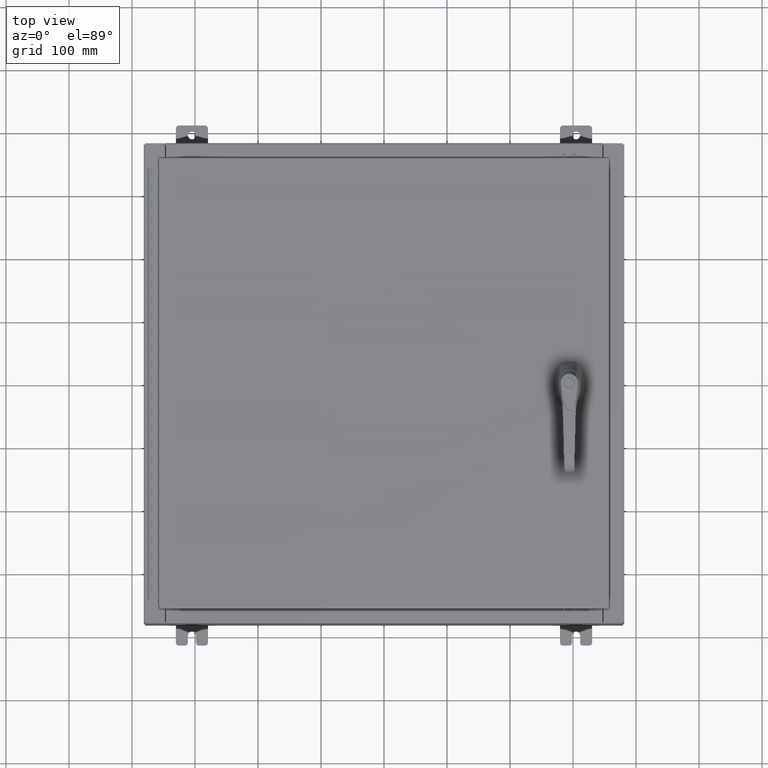
[diagram: clean part render]
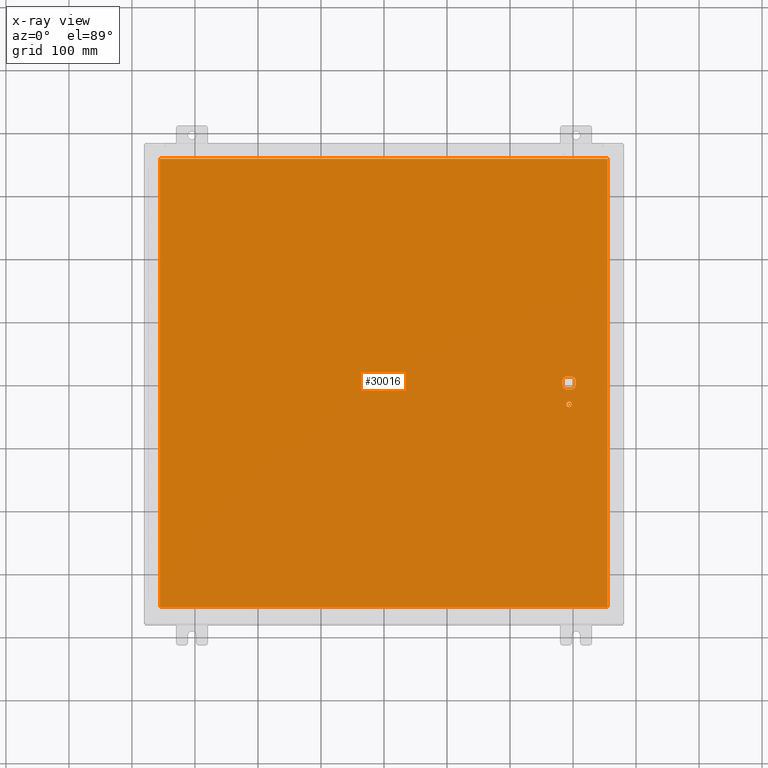
[diagram: x-ray — body ghosted, one internal face saturated and labeled with its STEP entity id]
A machine part, top view, then the same camera in x-ray: the body is ghosted and one INTERNAL B-rep face — a face not visible from any outside direction — is saturated and labeled: STEP entity #30016.
In plain terms, the highlighted planar face has unit normal (0, 0, -1).
Its self-contained STEP definition (entity closure, byte-faithful):
#462 = CARTESIAN_POINT ( 'NONE',  ( 0.0000000000000000000, -0.4029999999999252000, -0.07470000000000003000 ) ) ;
#2960 = CIRCLE ( 'NONE', #76169, 0.1715000000000011500 ) ;
#5609 = EDGE_CURVE ( 'NONE', #63403, #84814, #28062, .T. ) ;
#6179 = FACE_OUTER_BOUND ( 'NONE', #62914, .T. ) ;
#6189 = ORIENTED_EDGE ( 'NONE', *, *, #82109, .F. ) ;
#6608 = EDGE_CURVE ( 'NONE', #28582, #18325, #113651, .T. ) ;
#7896 = CARTESIAN_POINT ( 'NONE',  ( 0.0000000000000000000, 0.4029999999999252000, -0.07470000000000003000 ) ) ;
#11166 = LINE ( 'NONE', #114483, #105381 ) ;
#11425 = ORIENTED_EDGE ( 'NONE', *, *, #75867, .T. ) ;
#12261 = CARTESIAN_POINT ( 'NONE',  ( 11.98099999999992900, -0.2002273707563067300, -0.07470000000000003000 ) ) ;
#13585 = VERTEX_POINT ( 'NONE', #53347 ) ;
#14094 = CIRCLE ( 'NONE', #71144, 0.4499999999999168000 ) ;
#14347 = LINE ( 'NONE', #462, #81550 ) ;
#14495 = PLANE ( 'NONE',  #21313 ) ;
#16480 = VERTEX_POINT ( 'NONE', #85905 ) ;
#17195 = ORIENTED_EDGE ( 'NONE', *, *, #18259, .T. ) ;
#18259 = EDGE_CURVE ( 'NONE', #111970, #37925, #14094, .T. ) ;
#18325 = VERTEX_POINT ( 'NONE', #103725 ) ;
#18920 = EDGE_CURVE ( 'NONE', #81813, #66931, #71163, .T. ) ;
#19060 = CARTESIAN_POINT ( 'NONE',  ( 11.37777262924369200, 0.4029999999999252000, -0.07470000000000003000 ) ) ;
#21177 = ORIENTED_EDGE ( 'NONE', *, *, #114319, .T. ) ;
#21313 = AXIS2_PLACEMENT_3D ( 'NONE', #42019, #105856, #51186 ) ;
#21895 = ORIENTED_EDGE ( 'NONE', *, *, #53624, .T. ) ;
#25097 = DIRECTION ( 'NONE',  ( -0.0000000000000000000, -0.0000000000000000000, 1.000000000000000000 ) ) ;
#25646 = LINE ( 'NONE', #36164, #49925 ) ;
#27431 = ORIENTED_EDGE ( 'NONE', *, *, #102684, .F. ) ;
#28062 = CIRCLE ( 'NONE', #32791, 0.4499999999999168000 ) ;
#28219 = ORIENTED_EDGE ( 'NONE', *, *, #70433, .T. ) ;
#28260 = AXIS2_PLACEMENT_3D ( 'NONE', #107661, #52976, #116899 ) ;
#28436 = CARTESIAN_POINT ( 'NONE',  ( 11.37777262924369200, -0.4029999999999250300, -0.07470000000000003000 ) ) ;
#28582 = VERTEX_POINT ( 'NONE', #46471 ) ;
#29080 = AXIS2_PLACEMENT_3D ( 'NONE', #92074, #37431, #101270 ) ;
#30016 = ADVANCED_FACE ( 'NONE', ( #76166, #6179, #54704 ), #14495, .T. ) ;
#30328 = CARTESIAN_POINT ( 'NONE',  ( 11.57800000000000100, 0.0000000000000000000, -0.07470000000000003000 ) ) ;
#32181 = DIRECTION ( 'NONE',  ( -1.000000000000000000, -0.0000000000000000000, -0.0000000000000000000 ) ) ;
#32791 = AXIS2_PLACEMENT_3D ( 'NONE', #102702, #48009, #111899 ) ;
#35542 = CARTESIAN_POINT ( 'NONE',  ( 13.99030000000000100, -14.00630000000000300, -0.07470000000000000300 ) ) ;
#36164 = CARTESIAN_POINT ( 'NONE',  ( 11.98099999999992900, 6.538620706741755000E-014, -0.07470000000000003000 ) ) ;
#37150 = DIRECTION ( 'NONE',  ( 1.000000000000000000, 0.0000000000000000000, 0.0000000000000000000 ) ) ;
#37431 = DIRECTION ( 'NONE',  ( -0.0000000000000000000, -0.0000000000000000000, 1.000000000000000000 ) ) ;
#37691 = LINE ( 'NONE', #101814, #86256 ) ;
#37925 = VERTEX_POINT ( 'NONE', #12261 ) ;
#39526 = DIRECTION ( 'NONE',  ( -1.000000000000000000, -1.776356839400246700E-015, 0.0000000000000000000 ) ) ;
#40044 = ORIENTED_EDGE ( 'NONE', *, *, #116385, .F. ) ;
#40237 = LINE ( 'NONE', #96044, #88802 ) ;
#42019 = CARTESIAN_POINT ( 'NONE',  ( 0.0000000000000000000, 0.0000000000000000000, -0.07470000000000000300 ) ) ;
#42417 = CARTESIAN_POINT ( 'NONE',  ( -13.99029999999999800, 14.00629999999999400, -0.07470000000000000300 ) ) ;
#42448 = EDGE_LOOP ( 'NONE', ( #88512, #60122 ) ) ;
#43275 = EDGE_CURVE ( 'NONE', #96323, #111970, #14347, .T. ) ;
#46471 = CARTESIAN_POINT ( 'NONE',  ( 11.40650000000000100, -1.338000000000000100, -0.07470000000000003000 ) ) ;
#46629 = VERTEX_POINT ( 'NONE', #92173 ) ;
#46849 = VECTOR ( 'NONE', #109557, 39.37007874015748100 ) ;
#47136 = DIRECTION ( 'NONE',  ( 1.000000000000000000, -0.0000000000000000000, -0.0000000000000000000 ) ) ;
#48009 = DIRECTION ( 'NONE',  ( -0.0000000000000000000, -0.0000000000000000000, 1.000000000000000000 ) ) ;
#49925 = VECTOR ( 'NONE', #118416, 39.37007874015748100 ) ;
#51186 = DIRECTION ( 'NONE',  ( -1.000000000000000000, 0.0000000000000000000, -0.0000000000000000000 ) ) ;
#51446 = DIRECTION ( 'NONE',  ( -0.0000000000000000000, -0.0000000000000000000, 1.000000000000000000 ) ) ;
#52976 = DIRECTION ( 'NONE',  ( -0.0000000000000000000, -0.0000000000000000000, 1.000000000000000000 ) ) ;
#53347 = CARTESIAN_POINT ( 'NONE',  ( 11.77822737075631200, 0.4029999999999250300, -0.07470000000000003000 ) ) ;
#53624 = EDGE_CURVE ( 'NONE', #16480, #13585, #108218, .T. ) ;
#53920 = CARTESIAN_POINT ( 'NONE',  ( -13.99029999999999800, -14.00630000000000100, -0.07470000000000000300 ) ) ;
#54704 = FACE_BOUND ( 'NONE', #115995, .T. ) ;
#55701 = VECTOR ( 'NONE', #62889, 39.37007874015748100 ) ;
#60122 = ORIENTED_EDGE ( 'NONE', *, *, #6608, .T. ) ;
#62889 = DIRECTION ( 'NONE',  ( 0.0000000000000000000, 1.000000000000000000, 0.0000000000000000000 ) ) ;
#62914 = EDGE_LOOP ( 'NONE', ( #27431, #6189, #87693, #40044 ) ) ;
#63403 = VERTEX_POINT ( 'NONE', #19060 ) ;
#63632 = CARTESIAN_POINT ( 'NONE',  ( -13.99029999999999800, 14.00629999999999600, -0.07470000000000019700 ) ) ;
#66931 = VERTEX_POINT ( 'NONE', #53920 ) ;
#68250 = CARTESIAN_POINT ( 'NONE',  ( 11.77822737075631200, -0.4029999999999252000, -0.07470000000000003000 ) ) ;
#68309 = EDGE_CURVE ( 'NONE', #18325, #28582, #2960, .T. ) ;
#70433 = EDGE_CURVE ( 'NONE', #84814, #46629, #11166, .T. ) ;
#71144 = AXIS2_PLACEMENT_3D ( 'NONE', #30328, #94184, #39526 ) ;
#71163 = LINE ( 'NONE', #63632, #46849 ) ;
#71414 = ORIENTED_EDGE ( 'NONE', *, *, #43275, .T. ) ;
#75867 = EDGE_CURVE ( 'NONE', #46629, #96323, #89193, .T. ) ;
#76166 = FACE_BOUND ( 'NONE', #42448, .T. ) ;
#76169 = AXIS2_PLACEMENT_3D ( 'NONE', #79861, #25097, #89011 ) ;
#78189 = DIRECTION ( 'NONE',  ( 0.0000000000000000000, -1.000000000000000000, 0.0000000000000000000 ) ) ;
#78538 = VERTEX_POINT ( 'NONE', #106690 ) ;
#79633 = VERTEX_POINT ( 'NONE', #35542 ) ;
#79861 = CARTESIAN_POINT ( 'NONE',  ( 11.57800000000000100, -1.338000000000000100, -0.07470000000000003000 ) ) ;
#81550 = VECTOR ( 'NONE', #37150, 39.37007874015748100 ) ;
#81813 = VERTEX_POINT ( 'NONE', #42417 ) ;
#82109 = EDGE_CURVE ( 'NONE', #66931, #79633, #37691, .T. ) ;
#84814 = VERTEX_POINT ( 'NONE', #85871 ) ;
#85774 = LINE ( 'NONE', #108438, #55701 ) ;
#85871 = CARTESIAN_POINT ( 'NONE',  ( 11.17500000000007500, 0.2002273707563075900, -0.07470000000000003000 ) ) ;
#85905 = CARTESIAN_POINT ( 'NONE',  ( 11.98099999999992900, 0.2002273707563075900, -0.07470000000000003000 ) ) ;
#86256 = VECTOR ( 'NONE', #47136, 39.37007874015748100 ) ;
#86616 = EDGE_CURVE ( 'NONE', #16480, #37925, #25646, .T. ) ;
#87693 = ORIENTED_EDGE ( 'NONE', *, *, #18920, .F. ) ;
#88512 = ORIENTED_EDGE ( 'NONE', *, *, #68309, .T. ) ;
#88802 = VECTOR ( 'NONE', #32181, 39.37007874015748100 ) ;
#89011 = DIRECTION ( 'NONE',  ( -1.000000000000000000, 0.0000000000000000000, 0.0000000000000000000 ) ) ;
#89023 = LINE ( 'NONE', #7896, #113299 ) ;
#89193 = CIRCLE ( 'NONE', #29080, 0.4499999999999168000 ) ;
#92074 = CARTESIAN_POINT ( 'NONE',  ( 11.57800000000000100, 0.0000000000000000000, -0.07470000000000003000 ) ) ;
#92173 = CARTESIAN_POINT ( 'NONE',  ( 11.17500000000007500, -0.2002273707563079800, -0.07470000000000003000 ) ) ;
#94184 = DIRECTION ( 'NONE',  ( -0.0000000000000000000, -0.0000000000000000000, 1.000000000000000000 ) ) ;
#96044 = CARTESIAN_POINT ( 'NONE',  ( 13.99030000000000100, 14.00629999999999400, -0.07469999999999910000 ) ) ;
#96323 = VERTEX_POINT ( 'NONE', #28436 ) ;
#97755 = AXIS2_PLACEMENT_3D ( 'NONE', #106115, #51446, #115358 ) ;
#100777 = ORIENTED_EDGE ( 'NONE', *, *, #86616, .F. ) ;
#101270 = DIRECTION ( 'NONE',  ( -1.000000000000000000, -1.776356839400246700E-015, 0.0000000000000000000 ) ) ;
#101814 = CARTESIAN_POINT ( 'NONE',  ( -13.99029999999999200, -14.00630000000000300, -0.07469999999999692200 ) ) ;
#102684 = EDGE_CURVE ( 'NONE', #79633, #78538, #85774, .T. ) ;
#102702 = CARTESIAN_POINT ( 'NONE',  ( 11.57800000000000100, 0.0000000000000000000, -0.07470000000000003000 ) ) ;
#103725 = CARTESIAN_POINT ( 'NONE',  ( 11.74950000000000300, -1.338000000000000100, -0.07470000000000003000 ) ) ;
#105381 = VECTOR ( 'NONE', #78189, 39.37007874015748100 ) ;
#105856 = DIRECTION ( 'NONE',  ( 0.0000000000000000000, 0.0000000000000000000, -1.000000000000000000 ) ) ;
#106115 = CARTESIAN_POINT ( 'NONE',  ( 11.57800000000000100, 0.0000000000000000000, -0.07470000000000003000 ) ) ;
#106690 = CARTESIAN_POINT ( 'NONE',  ( 13.99030000000000100, 14.00629999999999400, -0.07470000000000000300 ) ) ;
#107243 = DIRECTION ( 'NONE',  ( -1.000000000000000000, 0.0000000000000000000, 0.0000000000000000000 ) ) ;
#107661 = CARTESIAN_POINT ( 'NONE',  ( 11.57800000000000100, -1.338000000000000100, -0.07470000000000003000 ) ) ;
#108218 = CIRCLE ( 'NONE', #97755, 0.4499999999999168000 ) ;
#108438 = CARTESIAN_POINT ( 'NONE',  ( 13.99030000000000100, -14.00630000000000300, -0.07470000000000019700 ) ) ;
#109557 = DIRECTION ( 'NONE',  ( 0.0000000000000000000, -1.000000000000000000, 0.0000000000000000000 ) ) ;
#111899 = DIRECTION ( 'NONE',  ( -1.000000000000000000, -5.329070518200740300E-015, 0.0000000000000000000 ) ) ;
#111970 = VERTEX_POINT ( 'NONE', #68250 ) ;
#112319 = ORIENTED_EDGE ( 'NONE', *, *, #5609, .T. ) ;
#113299 = VECTOR ( 'NONE', #107243, 39.37007874015748100 ) ;
#113651 = CIRCLE ( 'NONE', #28260, 0.1715000000000011500 ) ;
#114319 = EDGE_CURVE ( 'NONE', #13585, #63403, #89023, .T. ) ;
#114483 = CARTESIAN_POINT ( 'NONE',  ( 11.17500000000007500, 0.0000000000000000000, -0.07470000000000003000 ) ) ;
#115358 = DIRECTION ( 'NONE',  ( -1.000000000000000000, -5.329070518200740300E-015, 0.0000000000000000000 ) ) ;
#115995 = EDGE_LOOP ( 'NONE', ( #17195, #100777, #21895, #21177, #112319, #28219, #11425, #71414 ) ) ;
#116385 = EDGE_CURVE ( 'NONE', #78538, #81813, #40237, .T. ) ;
#116899 = DIRECTION ( 'NONE',  ( -1.000000000000000000, 0.0000000000000000000, 0.0000000000000000000 ) ) ;
#118416 = DIRECTION ( 'NONE',  ( 5.457491617345625000E-015, -1.000000000000000000, 0.0000000000000000000 ) ) ;